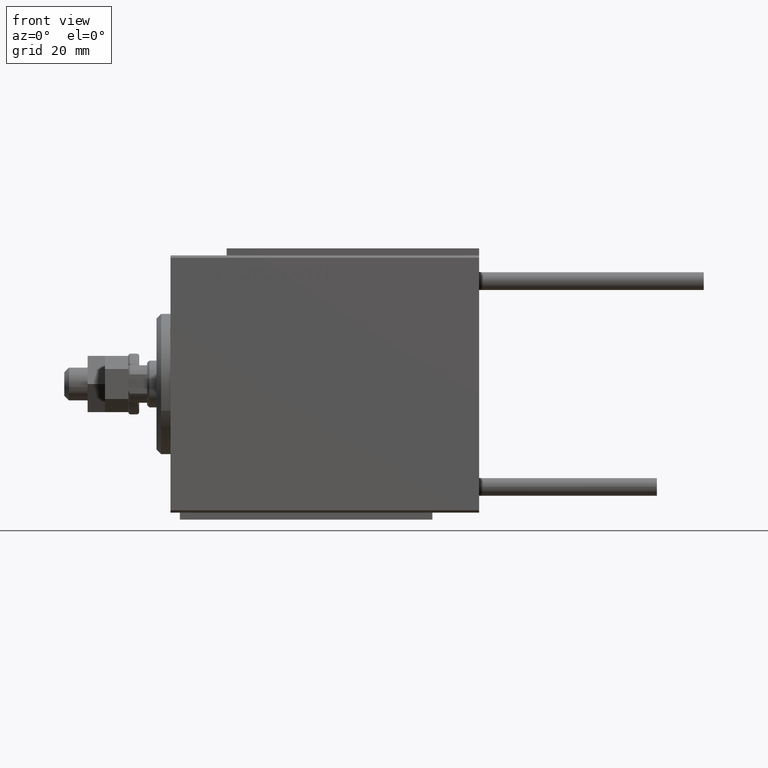
[diagram: clean part render]
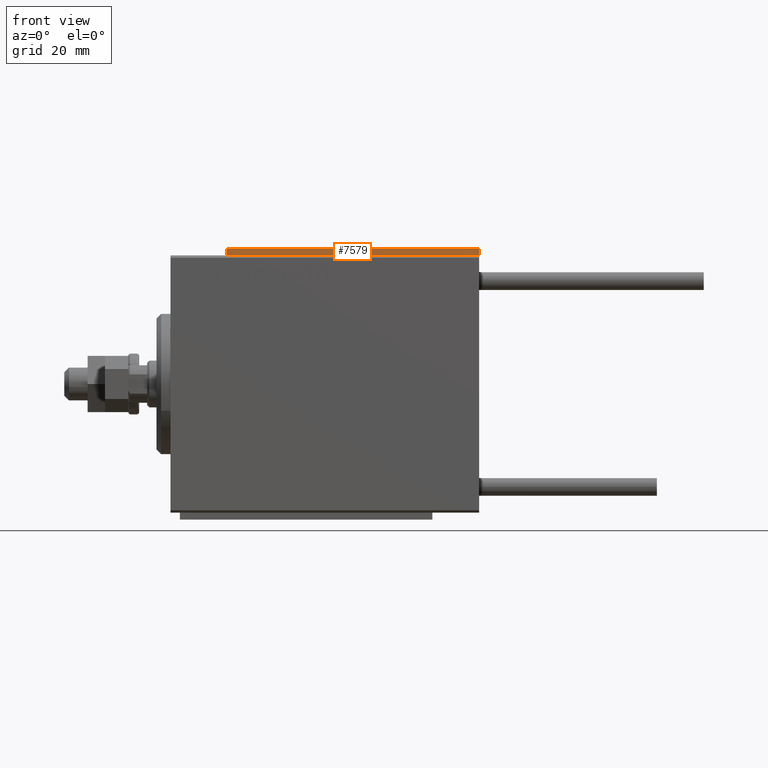
[diagram: same view with one face highlighted and labeled with its STEP entity id]
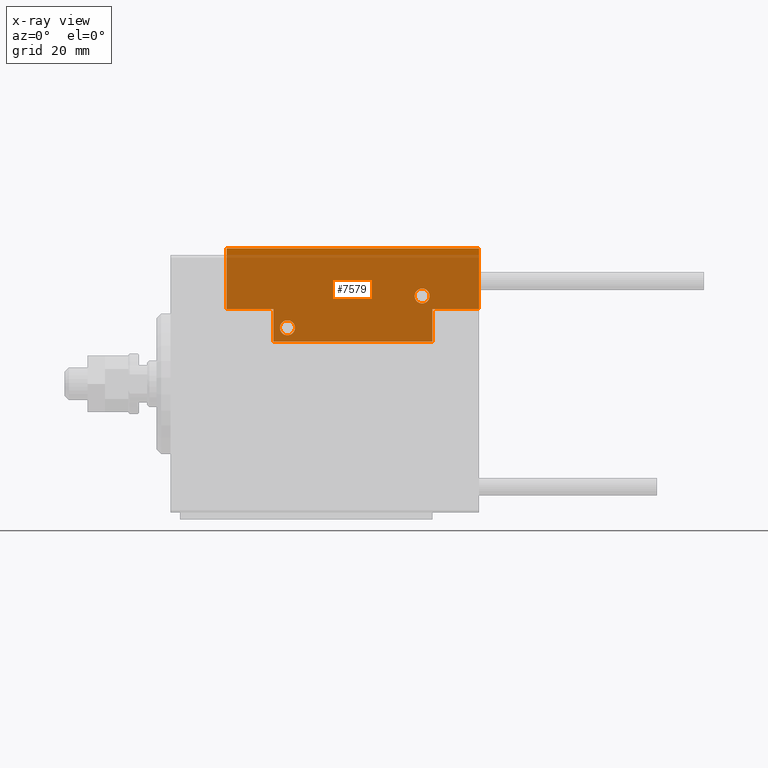
[diagram: x-ray of the same camera — body ghosted, the highlighted face saturated]
A machine part, front view. The second image highlights one B-rep face of the part: STEP entity #7579.
The next image is the same camera in x-ray: the body ghosted, the highlighted face saturated — about 91% of this face is hidden behind the body in this view.
In plain terms, the highlighted planar face has unit normal (0, 1, -0).
Its self-contained STEP definition (entity closure, byte-faithful):
#417 = VECTOR ( 'NONE', #18208, 1000.000000000000000 ) ;
#574 = CARTESIAN_POINT ( 'NONE',  ( -16.99999999999999289, 3.252606517456513302E-15, 0.000000000000000000 ) ) ;
#855 = DIRECTION ( 'NONE',  ( 1.000000000000000000, 0.000000000000000000, 0.000000000000000000 ) ) ;
#1170 = CARTESIAN_POINT ( 'NONE',  ( -14.79999999999994920, 9.800000000000004263, 0.000000000000000000 ) ) ;
#1299 = CARTESIAN_POINT ( 'NONE',  ( 0.000000000000000000, 0.000000000000000000, 0.000000000000000000 ) ) ;
#2499 = DIRECTION ( 'NONE',  ( 0.000000000000000000, 0.000000000000000000, 1.000000000000000000 ) ) ;
#2527 = VERTEX_POINT ( 'NONE', #30334 ) ;
#4496 = AXIS2_PLACEMENT_3D ( 'NONE', #19323, #31530, #35625 ) ;
#5723 = CARTESIAN_POINT ( 'NONE',  ( -26.99999999999994671, 7.000000000000005329, 0.000000000000000000 ) ) ;
#5724 = VERTEX_POINT ( 'NONE', #13685 ) ;
#5887 = VECTOR ( 'NONE', #15020, 1000.000000000000000 ) ;
#6066 = ORIENTED_EDGE ( 'NONE', *, *, #47063, .F. ) ;
#6711 = VERTEX_POINT ( 'NONE', #13252 ) ;
#7579 = ADVANCED_FACE ( 'NONE', ( #35961, #40281, #40531 ), #20914, .F. ) ;
#8197 = CARTESIAN_POINT ( 'NONE',  ( 17.00000000000000000, 7.000000000000009770, 0.000000000000000000 ) ) ;
#9123 = AXIS2_PLACEMENT_3D ( 'NONE', #24787, #35767, #855 ) ;
#9734 = EDGE_CURVE ( 'NONE', #19653, #17300, #37993, .T. ) ;
#10314 = ORIENTED_EDGE ( 'NONE', *, *, #43824, .F. ) ;
#10360 = VERTEX_POINT ( 'NONE', #8197 ) ;
#10723 = ORIENTED_EDGE ( 'NONE', *, *, #46096, .T. ) ;
#11363 = CARTESIAN_POINT ( 'NONE',  ( -26.99999999999993605, 20.00000000000002132, 0.000000000000000000 ) ) ;
#12458 = ORIENTED_EDGE ( 'NONE', *, *, #17772, .F. ) ;
#12637 = DIRECTION ( 'NONE',  ( 1.000000000000000000, 0.000000000000000000, 0.000000000000000000 ) ) ;
#12829 = LINE ( 'NONE', #13077, #34882 ) ;
#13077 = CARTESIAN_POINT ( 'NONE',  ( -26.99999999999993605, 20.00000000000002132, 0.000000000000000000 ) ) ;
#13103 = VERTEX_POINT ( 'NONE', #36139 ) ;
#13252 = CARTESIAN_POINT ( 'NONE',  ( -16.99999999999999289, 7.000000000000003553, 0.000000000000000000 ) ) ;
#13481 = VECTOR ( 'NONE', #29836, 1000.000000000000000 ) ;
#13685 = CARTESIAN_POINT ( 'NONE',  ( 27.00000000000006395, 7.000000000000007994, 0.000000000000000000 ) ) ;
#13979 = CARTESIAN_POINT ( 'NONE',  ( 13.99999999999999822, 3.000000000000002665, 0.000000000000000000 ) ) ;
#15020 = DIRECTION ( 'NONE',  ( -1.000000000000000000, 6.424901762877062263E-17, 0.000000000000000000 ) ) ;
#15060 = CARTESIAN_POINT ( 'NONE',  ( -16.99999999999999289, 3.252606517456513302E-15, 0.000000000000000000 ) ) ;
#15214 = EDGE_LOOP ( 'NONE', ( #30574, #32695, #43515, #23930, #6066, #12458, #43612, #10314 ) ) ;
#15403 = EDGE_CURVE ( 'NONE', #38409, #45021, #18521, .T. ) ;
#16923 = EDGE_LOOP ( 'NONE', ( #43878, #23191 ) ) ;
#17300 = VERTEX_POINT ( 'NONE', #21346 ) ;
#17457 = CARTESIAN_POINT ( 'NONE',  ( 16.99999999999999289, 3.252606517456513302E-15, 0.000000000000000000 ) ) ;
#17588 = LINE ( 'NONE', #48943, #40208 ) ;
#17772 = EDGE_CURVE ( 'NONE', #20143, #13103, #12829, .T. ) ;
#17851 = EDGE_LOOP ( 'NONE', ( #17928, #10723 ) ) ;
#17877 = CARTESIAN_POINT ( 'NONE',  ( -16.99999999999999289, 7.000000000000003553, 0.000000000000000000 ) ) ;
#17928 = ORIENTED_EDGE ( 'NONE', *, *, #40608, .T. ) ;
#18208 = DIRECTION ( 'NONE',  ( 9.912705577010318647E-16, 1.000000000000000000, 0.000000000000000000 ) ) ;
#18301 = CARTESIAN_POINT ( 'NONE',  ( 15.59999999999999964, 3.000000000000002665, 0.000000000000000000 ) ) ;
#18521 = CIRCLE ( 'NONE', #25013, 1.600000000000000755 ) ;
#19323 = CARTESIAN_POINT ( 'NONE',  ( -14.79999999999994920, 9.800000000000004263, 0.000000000000000000 ) ) ;
#19653 = VERTEX_POINT ( 'NONE', #574 ) ;
#19816 = CARTESIAN_POINT ( 'NONE',  ( -16.39999999999994884, 9.800000000000004263, 0.000000000000000000 ) ) ;
#20143 = VERTEX_POINT ( 'NONE', #11363 ) ;
#20914 = PLANE ( 'NONE',  #28843 ) ;
#21346 = CARTESIAN_POINT ( 'NONE',  ( 16.99999999999999289, 3.252606517456513302E-15, 0.000000000000000000 ) ) ;
#22787 = DIRECTION ( 'NONE',  ( 1.000000000000000000, -1.734723475976796001E-16, 0.000000000000000000 ) ) ;
#23191 = ORIENTED_EDGE ( 'NONE', *, *, #35880, .T. ) ;
#23930 = ORIENTED_EDGE ( 'NONE', *, *, #47294, .F. ) ;
#24476 = DIRECTION ( 'NONE',  ( 1.000000000000000000, 0.000000000000000000, 0.000000000000000000 ) ) ;
#24787 = CARTESIAN_POINT ( 'NONE',  ( 13.99999999999999822, 3.000000000000002665, 0.000000000000000000 ) ) ;
#25013 = AXIS2_PLACEMENT_3D ( 'NONE', #13979, #2499, #32819 ) ;
#25477 = DIRECTION ( 'NONE',  ( 0.000000000000000000, 1.000000000000000000, 0.000000000000000000 ) ) ;
#26026 = LINE ( 'NONE', #17877, #13481 ) ;
#26336 = DIRECTION ( 'NONE',  ( 1.000000000000000000, -1.734723475976815230E-16, 0.000000000000000000 ) ) ;
#26354 = VERTEX_POINT ( 'NONE', #42329 ) ;
#26464 = CIRCLE ( 'NONE', #4496, 1.600000000000000755 ) ;
#26779 = DIRECTION ( 'NONE',  ( 1.000000000000000000, 0.000000000000000000, 0.000000000000000000 ) ) ;
#27476 = LINE ( 'NONE', #42280, #5887 ) ;
#28082 = VECTOR ( 'NONE', #26779, 1000.000000000000000 ) ;
#28843 = AXIS2_PLACEMENT_3D ( 'NONE', #1299, #44353, #24476 ) ;
#29543 = AXIS2_PLACEMENT_3D ( 'NONE', #1170, #31984, #12637 ) ;
#29836 = DIRECTION ( 'NONE',  ( 0.000000000000000000, -1.000000000000000000, 0.000000000000000000 ) ) ;
#30334 = CARTESIAN_POINT ( 'NONE',  ( 27.00000000000006395, 20.00000000000001776, 0.000000000000000000 ) ) ;
#30574 = ORIENTED_EDGE ( 'NONE', *, *, #42610, .F. ) ;
#31530 = DIRECTION ( 'NONE',  ( 0.000000000000000000, 0.000000000000000000, 1.000000000000000000 ) ) ;
#31984 = DIRECTION ( 'NONE',  ( 0.000000000000000000, 0.000000000000000000, 1.000000000000000000 ) ) ;
#32695 = ORIENTED_EDGE ( 'NONE', *, *, #46708, .F. ) ;
#32819 = DIRECTION ( 'NONE',  ( 1.000000000000000000, 0.000000000000000000, 0.000000000000000000 ) ) ;
#33693 = VECTOR ( 'NONE', #22787, 1000.000000000000000 ) ;
#34882 = VECTOR ( 'NONE', #47234, 1000.000000000000000 ) ;
#35441 = VECTOR ( 'NONE', #26336, 1000.000000000000000 ) ;
#35625 = DIRECTION ( 'NONE',  ( 1.000000000000000000, 0.000000000000000000, 0.000000000000000000 ) ) ;
#35767 = DIRECTION ( 'NONE',  ( 0.000000000000000000, 0.000000000000000000, 1.000000000000000000 ) ) ;
#35880 = EDGE_CURVE ( 'NONE', #45021, #38409, #47384, .T. ) ;
#35961 = FACE_BOUND ( 'NONE', #17851, .T. ) ;
#36139 = CARTESIAN_POINT ( 'NONE',  ( -26.99999999999994671, 7.000000000000005329, 0.000000000000000000 ) ) ;
#37329 = LINE ( 'NONE', #17457, #417 ) ;
#37993 = LINE ( 'NONE', #15060, #28082 ) ;
#38409 = VERTEX_POINT ( 'NONE', #18301 ) ;
#38504 = CARTESIAN_POINT ( 'NONE',  ( 12.39999999999999858, 3.000000000000002665, 0.000000000000000000 ) ) ;
#39210 = EDGE_CURVE ( 'NONE', #2527, #20143, #27476, .T. ) ;
#40208 = VECTOR ( 'NONE', #25477, 1000.000000000000000 ) ;
#40281 = FACE_BOUND ( 'NONE', #16923, .T. ) ;
#40531 = FACE_OUTER_BOUND ( 'NONE', #15214, .T. ) ;
#40608 = EDGE_CURVE ( 'NONE', #26354, #48802, #49065, .T. ) ;
#42280 = CARTESIAN_POINT ( 'NONE',  ( 27.00000000000006395, 20.00000000000001776, 0.000000000000000000 ) ) ;
#42329 = CARTESIAN_POINT ( 'NONE',  ( -13.19999999999994778, 9.800000000000004263, 0.000000000000000000 ) ) ;
#42610 = EDGE_CURVE ( 'NONE', #10360, #5724, #50052, .T. ) ;
#43515 = ORIENTED_EDGE ( 'NONE', *, *, #9734, .F. ) ;
#43612 = ORIENTED_EDGE ( 'NONE', *, *, #39210, .F. ) ;
#43824 = EDGE_CURVE ( 'NONE', #5724, #2527, #17588, .T. ) ;
#43878 = ORIENTED_EDGE ( 'NONE', *, *, #15403, .T. ) ;
#44353 = DIRECTION ( 'NONE',  ( -0.000000000000000000, 0.000000000000000000, 1.000000000000000000 ) ) ;
#45021 = VERTEX_POINT ( 'NONE', #38504 ) ;
#45708 = LINE ( 'NONE', #5723, #35441 ) ;
#45985 = CARTESIAN_POINT ( 'NONE',  ( 17.00000000000000000, 7.000000000000009770, 0.000000000000000000 ) ) ;
#46096 = EDGE_CURVE ( 'NONE', #48802, #26354, #26464, .T. ) ;
#46708 = EDGE_CURVE ( 'NONE', #17300, #10360, #37329, .T. ) ;
#47063 = EDGE_CURVE ( 'NONE', #13103, #6711, #45708, .T. ) ;
#47234 = DIRECTION ( 'NONE',  ( -8.006416042969869188E-16, -1.000000000000000000, 0.000000000000000000 ) ) ;
#47294 = EDGE_CURVE ( 'NONE', #6711, #19653, #26026, .T. ) ;
#47384 = CIRCLE ( 'NONE', #9123, 1.600000000000000755 ) ;
#48802 = VERTEX_POINT ( 'NONE', #19816 ) ;
#48943 = CARTESIAN_POINT ( 'NONE',  ( 27.00000000000006395, 7.000000000000007994, 0.000000000000000000 ) ) ;
#49065 = CIRCLE ( 'NONE', #29543, 1.600000000000000755 ) ;
#50052 = LINE ( 'NONE', #45985, #33693 ) ;